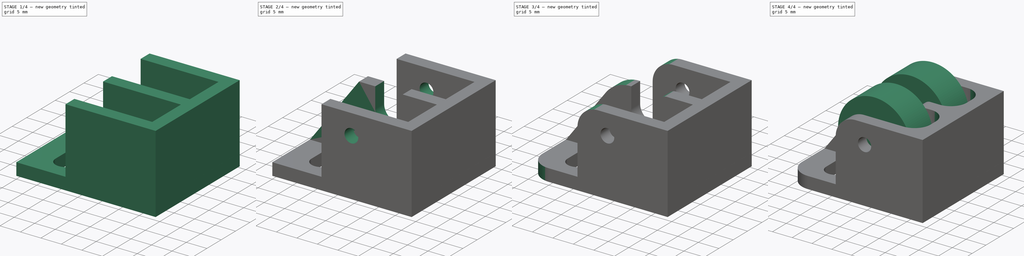
[diagram: build sequence overview — one tinted view per stage of 4, left to right]
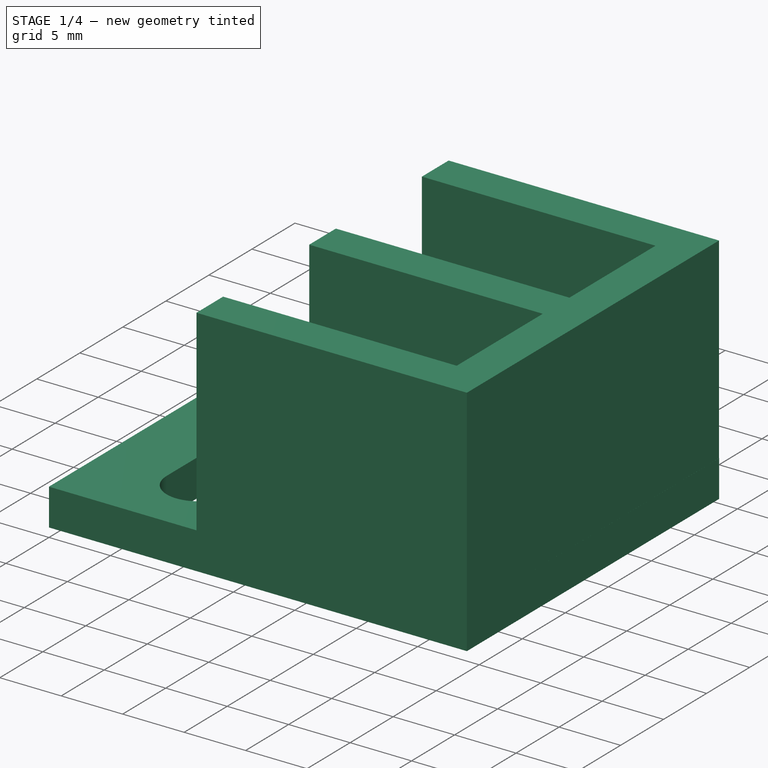
[diagram: stage 1 of 4 — iso view after this stage's code; geometry added in this stage tinted green]
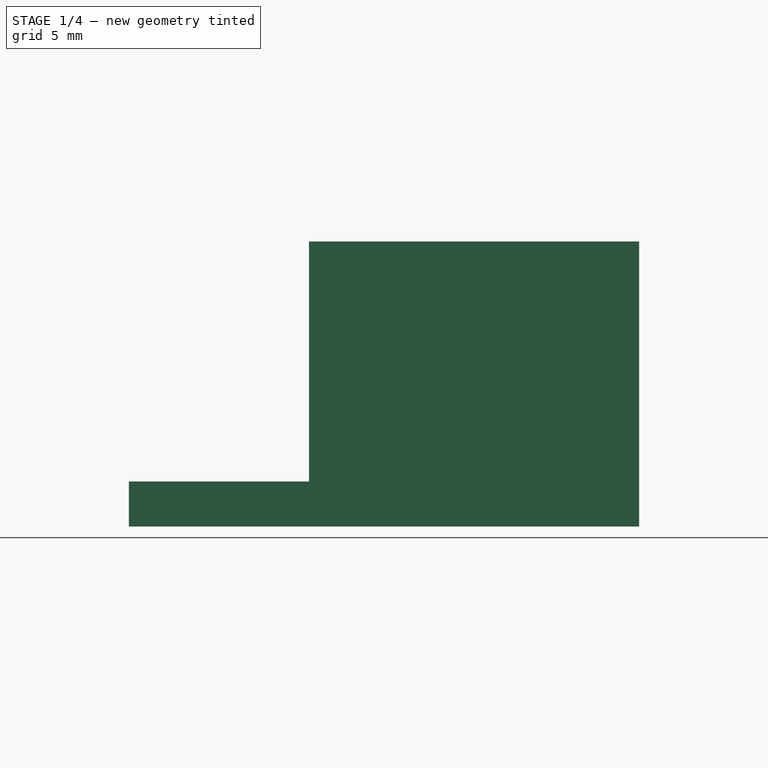
[diagram: stage 1 of 4 — front view after this stage's code; geometry added in this stage tinted green]
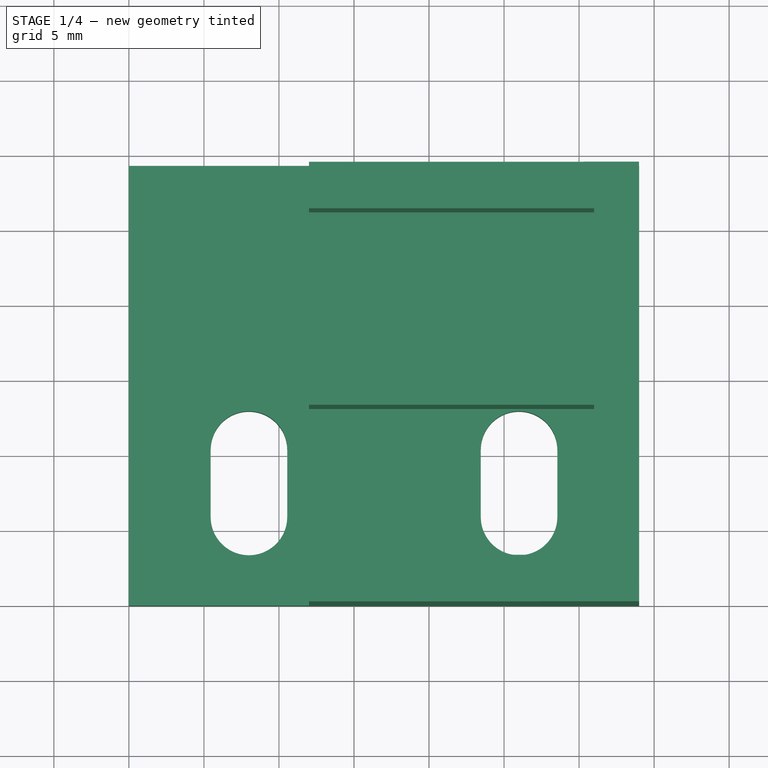
[diagram: stage 1 of 4 — top view after this stage's code; geometry added in this stage tinted green]
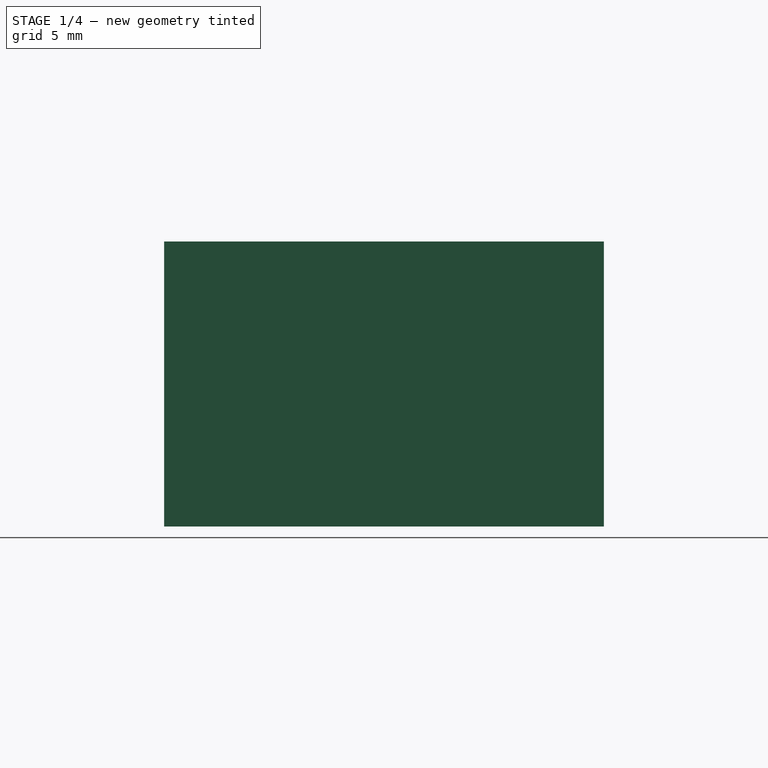
[diagram: stage 1 of 4 — right view after this stage's code; geometry added in this stage tinted green]
FCSTD DOCUMENT  (FreeCAD 0.16R6706 (Git))
Label: belt-junctions
License: All rights reserved
LicenseURL: http://en.wikipedia.org/wiki/All_rights_reserved
objects: PartDesign::Fillet×5, Sketcher::SketchObject×4, PartDesign::Pocket×3, Part::Cylinder×2, Part::Box×1, PartDesign::Pad×1, PartDesign::Draft×1
note: 21 computed .brp shape members not serialized (recipe doc carries the construction recipe); baked Part::Feature solids carry a one-line shape summary decoded from their .brp

FEATURE [Part::Box] Box  label="Cube"
  Height = 3
  Length = 34
  Width = 29.3
FEATURE [Sketcher::SketchObject] Sketch001  label="mnt holes"
  Placement = pos=(0,0,0) rot=(1,0,0;3.14159rad)
  Support = -> Box [Face5]
  sketch-geometry (8):
    g0: ArcOfCircle CenterX=26 CenterY=-5.9 CenterZ=0 NormalX=0 NormalY=0 NormalZ=1 Radius=2.55 StartAngle=0 EndAngle=3.14159
    g1: ArcOfCircle CenterX=26 CenterY=-10.4 CenterZ=0 NormalX=0 NormalY=0 NormalZ=1 Radius=2.55 StartAngle=3.14159 EndAngle=6.28319
    g2: LineSegment StartX=23.45 StartY=-5.9 StartZ=0 EndX=23.45 EndY=-10.4 EndZ=0
    g3: LineSegment StartX=28.55 StartY=-5.9 StartZ=0 EndX=28.55 EndY=-10.4 EndZ=0
    g4: ArcOfCircle CenterX=8 CenterY=-10.4 CenterZ=0 NormalX=0 NormalY=0 NormalZ=1 Radius=2.55 StartAngle=3.14159 EndAngle=6.28319
    g5: LineSegment StartX=10.55 StartY=-5.9 StartZ=0 EndX=10.55 EndY=-10.4 EndZ=0
    g6: LineSegment StartX=5.45 StartY=-5.9 StartZ=0 EndX=5.45 EndY=-10.4 EndZ=0
    g7: ArcOfCircle CenterX=8 CenterY=-5.9 CenterZ=0 NormalX=0 NormalY=0 NormalZ=1 Radius=2.55 StartAngle=0 EndAngle=3.14159
  constraints (20):
    c: Tangent(g0,g3) = 1.5708
    c: Tangent(g0,g2) = -1.5708
    c: Tangent(g2,g1) = -1.5708
    c: Tangent(g3,g1) = 1.5708
    c: Vertical(g2)
    c: Equal(g0,g1)
    c: DistanceY(g-1,g0) = -5.9
    c: Distance(g0,g1) = 4.5
    c: Radius(g1) = 2.55
    c: Tangent(g7,g5) = 1.5708
    c: Tangent(g7,g6) = -1.5708
    c: Tangent(g6,g4) = -1.5708
    c: Tangent(g5,g4) = 1.5708
    c: Vertical(g6)
    c: Equal(g7,g4)
    c: Distance(g7,g4) = 4.5
    c: Equal(g1,g4) = 2.55
    c: DistanceY(g-1,g7) = -5.9
    c: DistanceX(g-2,g7) = 8
    c: Distance(g0,g7) = 18
FEATURE [PartDesign::Pocket] Pocket
  Length = 5
  Sketch = -> Sketch001
  Type = 0
FEATURE [Sketcher::SketchObject] Sketch  label="frame"
  Placement = pos=(0,0,3) rot=(0,0,1;0rad)
  Support = -> Pocket [Face3]
  sketch-geometry (12):
    g0: LineSegment StartX=33.9966 StartY=29.3 StartZ=0 EndX=11.9992 EndY=29.2969 EndZ=0
    g1: LineSegment StartX=11.9992 StartY=29.2969 StartZ=0 EndX=11.9997 EndY=26.1969 EndZ=0
    g2: LineSegment StartX=11.9997 StartY=26.1969 StartZ=0 EndX=30.9997 EndY=26.1996 EndZ=0
    g3: LineSegment StartX=30.9997 StartY=26.1996 StartZ=0 EndX=31.0011 EndY=16.1996 EndZ=0
    g4: LineSegment StartX=31.0011 StartY=16.1996 StartZ=0 EndX=12.0011 EndY=16.1969 EndZ=0
    g5: LineSegment StartX=12.0011 StartY=16.1969 StartZ=0 EndX=12.0015 EndY=13.0969 EndZ=0
    g6: LineSegment StartX=12.0015 StartY=13.0969 StartZ=0 EndX=31.0015 EndY=13.0996 EndZ=0
    g7: LineSegment StartX=31.0015 StartY=13.0996 StartZ=0 EndX=31.0029 EndY=3.09958 EndZ=0
    g8: LineSegment StartX=31.0029 StartY=3.09958 StartZ=0 EndX=12.0029 EndY=3.09692 EndZ=0
    g9: LineSegment StartX=12.0029 StartY=3.09692 StartZ=0 EndX=12.0033 EndY=-0.00307969 EndZ=0
    g10: LineSegment StartX=12.0033 StartY=-0.00307969 StartZ=0 EndX=34.0007 EndY=0 EndZ=0
    g11: LineSegment StartX=34.0007 StartY=0 StartZ=0 EndX=33.9966 EndY=29.3 EndZ=0
  constraints (34):
    c: Coincident(g0,g1)
    c: Coincident(g1,g2)
    c: Coincident(g2,g3)
    c: Coincident(g3,g4)
    c: Coincident(g4,g5)
    c: Coincident(g5,g6)
    c: Coincident(g6,g7)
    c: Coincident(g7,g8)
    c: Coincident(g8,g9)
    c: Coincident(g9,g10)
    c: Coincident(g10,g11)
    c: Coincident(g11,g0)
    c: Parallel(g0,g2)
    c: Parallel(g2,g4)
    c: Parallel(g4,g6)
    c: Parallel(g6,g8)
    c: Parallel(g8,g10)
    c: DistanceY(g-1,g10) = 0
    c: Parallel(g11,g3)
    c: Parallel(g3,g1)
    c: Parallel(g1,g5)
    c: Parallel(g5,g7)
    c: Parallel(g7,g9)
    c: Perpendicular(g0,g11)
    c: Equal(g1,g5)
    c: Equal(g5,g9)
    c: Equal(g0,g10)
    c: Equal(g2,g4)
    c: Equal(g4,g6)
    c: Equal(g6,g8)
    c: Distance(g1) = 3.1
    c: Equal(g3,g7)
    c: Distance(g3) = 10
    c: Distance(g2) = 19
FEATURE [PartDesign::Pad] Pad
  Length = 16
  Length2 = 100
  Sketch = -> Sketch
  Type = 0
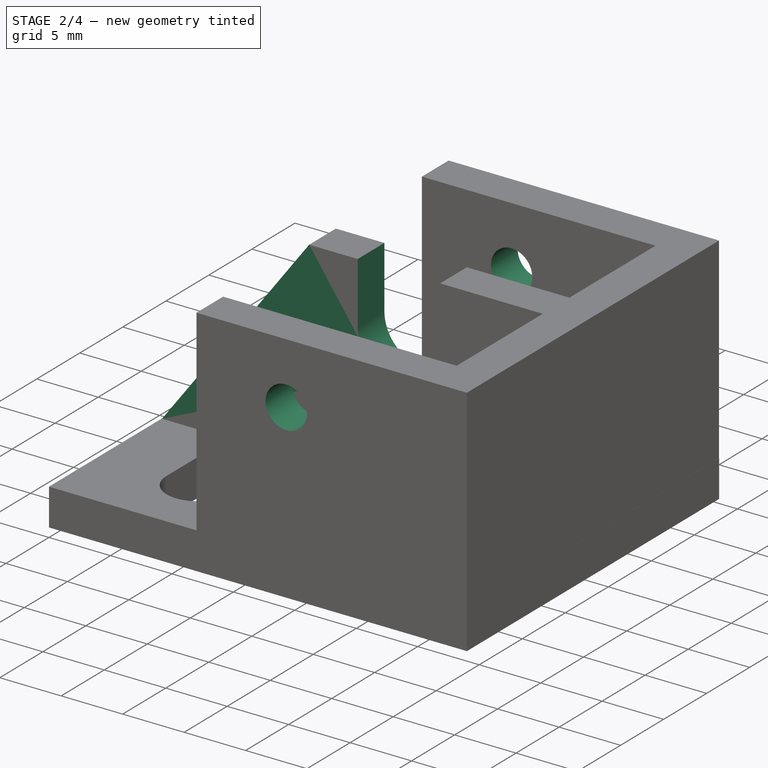
[diagram: stage 2 of 4 — iso view after this stage's code; geometry added in this stage tinted green]
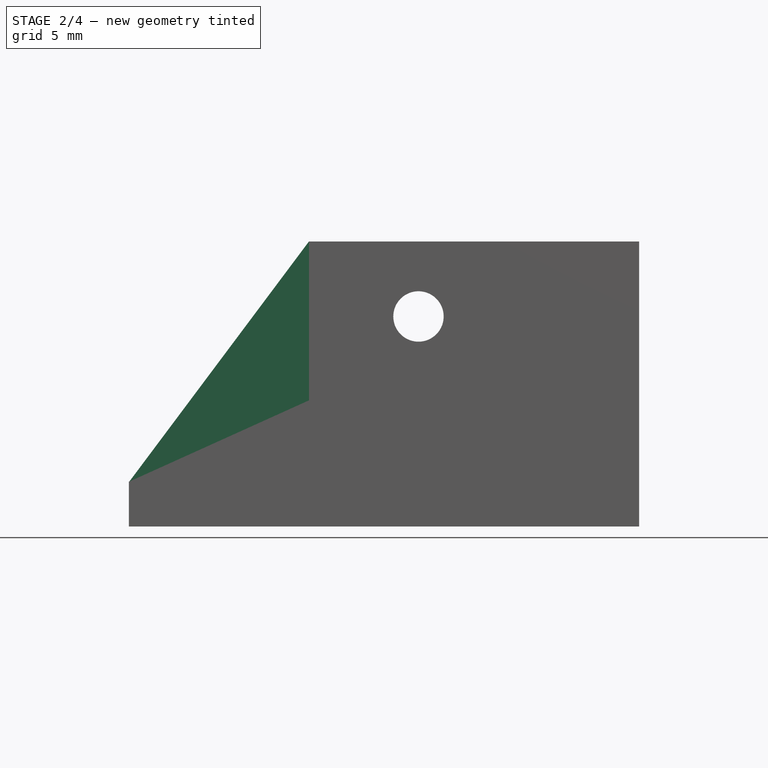
[diagram: stage 2 of 4 — front view after this stage's code; geometry added in this stage tinted green]
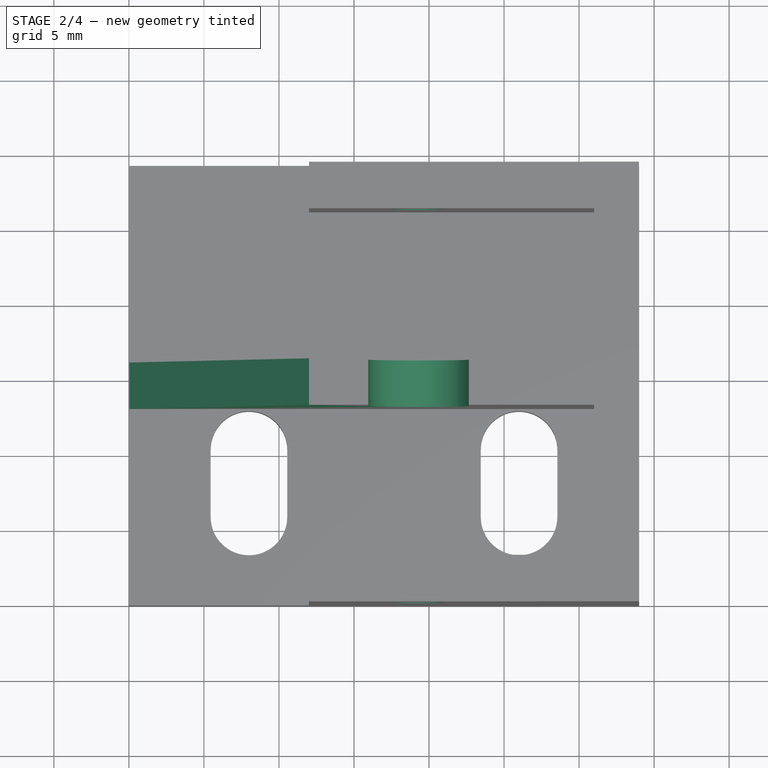
[diagram: stage 2 of 4 — top view after this stage's code; geometry added in this stage tinted green]
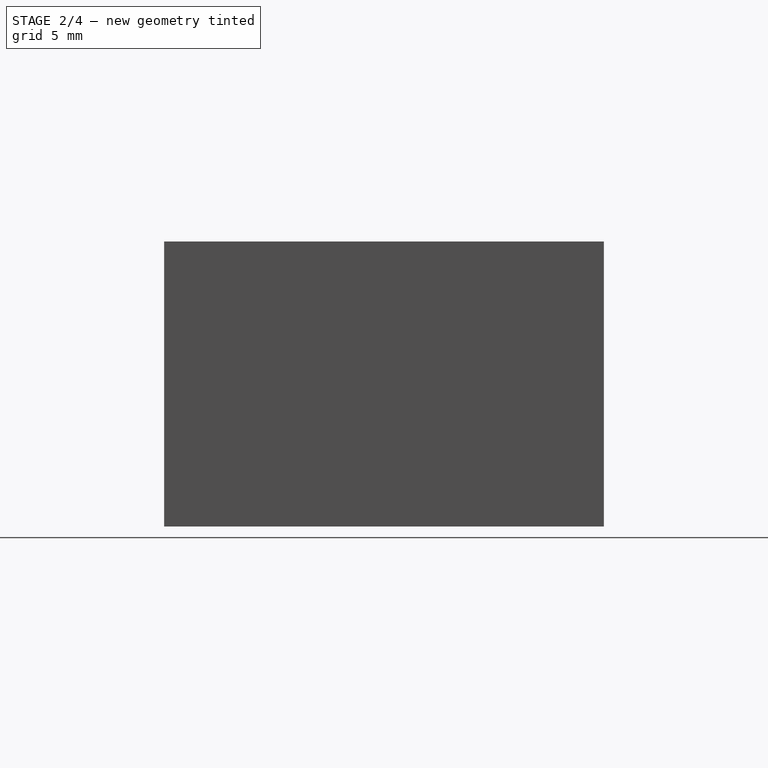
[diagram: stage 2 of 4 — right view after this stage's code; geometry added in this stage tinted green]
FEATURE [Sketcher::SketchObject] Sketch002
  Placement = pos=(6.66441e-07,-0.00476019,0) rot=(1,7e-05,7e-05;1.5708rad)
  Support = -> Pad [Face28]
  sketch-geometry (1):
    g0: Circle CenterX=19.3 CenterY=14 CenterZ=0 NormalX=0 NormalY=0 NormalZ=1 Radius=1.68
  constraints (3):
    c: Radius(g0) = 1.68
    c: DistanceY(g-1,g0) = 14
    c: DistanceX(g-2,g0) = 19.3
FEATURE [PartDesign::Pocket] Pocket001
  Length = 5
  Sketch = -> Sketch002
  Type = 1
FEATURE [Sketcher::SketchObject] Sketch003
  Placement = pos=(-0.00183337,13.0952,0) rot=(1,7e-05,7e-05;1.5708rad)
  Support = -> Pocket001 [Face15]
  sketch-geometry (4):
    g0: ArcOfCircle CenterX=19.3 CenterY=14 CenterZ=0 NormalX=0 NormalY=0 NormalZ=1 Radius=3.35 StartAngle=3.14159 EndAngle=6.28319
    g1: ArcOfCircle CenterX=19.3 CenterY=22.9088 CenterZ=0 NormalX=0 NormalY=0 NormalZ=1 Radius=3.35 StartAngle=0 EndAngle=3.14159
    g2: LineSegment StartX=22.65 StartY=14 StartZ=0 EndX=22.65 EndY=22.9088 EndZ=0
    g3: LineSegment StartX=15.95 StartY=14 StartZ=0 EndX=15.95 EndY=22.9088 EndZ=0
  constraints (9):
    c: Tangent(g0,g3) = 1.5708
    c: Tangent(g0,g2) = -1.5708
    c: Tangent(g2,g1) = -1.5708
    c: Tangent(g3,g1) = 1.5708
    c: Vertical(g2)
    c: Equal(g0,g1)
    c: Distance(g1,g1) = 6.7
    c: DistanceX(g-2,g0) = 19.3
    c: DistanceY(g-1,g0) = 14
FEATURE [PartDesign::Pocket] Pocket002
  Length = 4
  Sketch = -> Sketch003
  Type = 0
FEATURE [PartDesign::Draft] Draft
  Angle = 36.8
  Base = -> Pocket002 [Face14]
  NeutralPlane = -> Pocket002 [Face31]
  Reversed = true
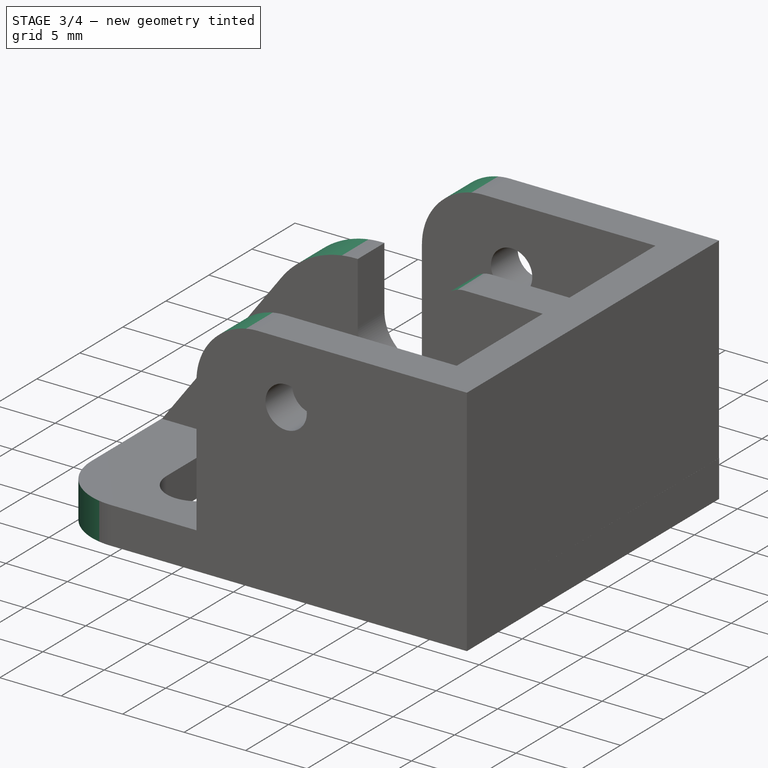
[diagram: stage 3 of 4 — iso view after this stage's code; geometry added in this stage tinted green]
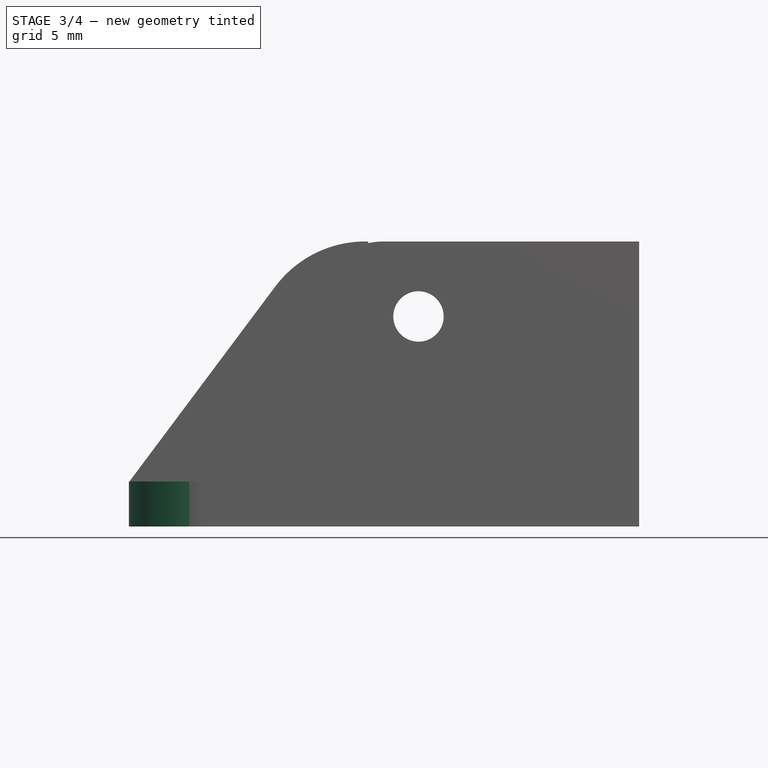
[diagram: stage 3 of 4 — front view after this stage's code; geometry added in this stage tinted green]
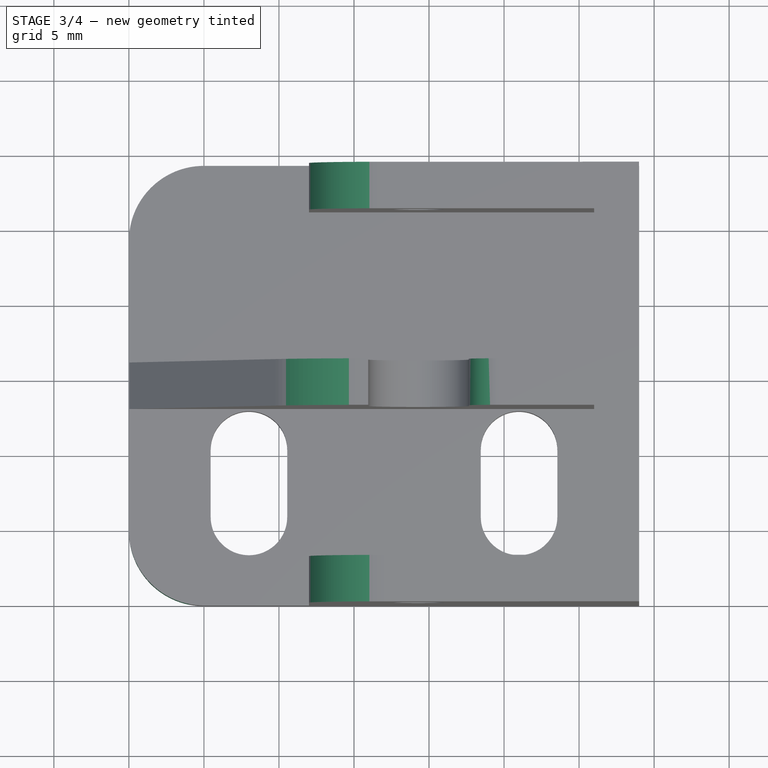
[diagram: stage 3 of 4 — top view after this stage's code; geometry added in this stage tinted green]
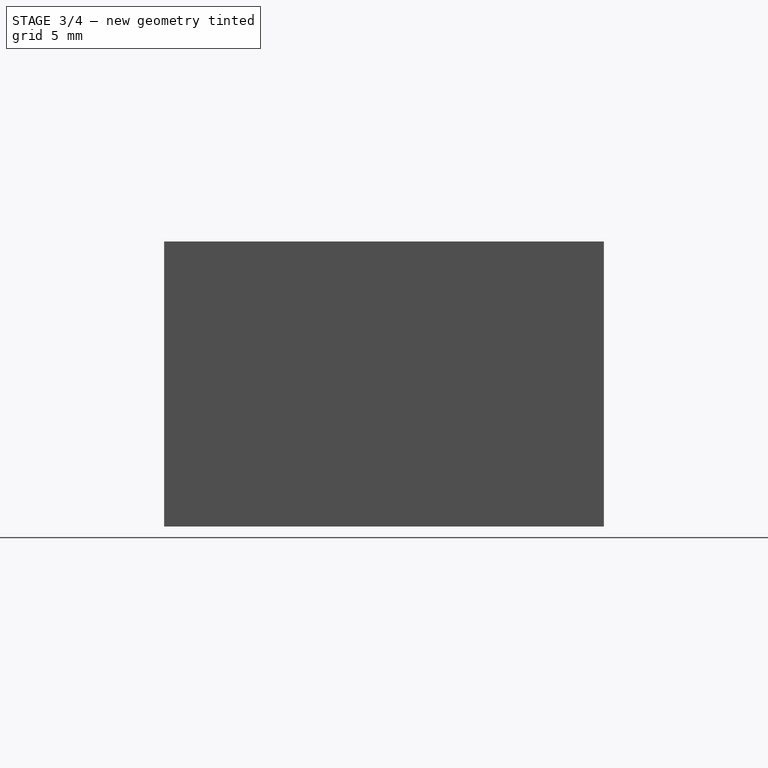
[diagram: stage 3 of 4 — right view after this stage's code; geometry added in this stage tinted green]
FEATURE [PartDesign::Fillet] Fillet
  Base = -> Draft [Edge77,Edge51]
  Radius = 5
FEATURE [PartDesign::Fillet] Fillet001
  Base = -> Fillet [Edge77]
  Radius = 7.5
FEATURE [PartDesign::Fillet] Fillet002
  Base = -> Fillet001 [Edge80,Edge58]
  Radius = 5
FEATURE [PartDesign::Fillet] Fillet003
  Base = -> Fillet002 [Edge104]
  Radius = 2
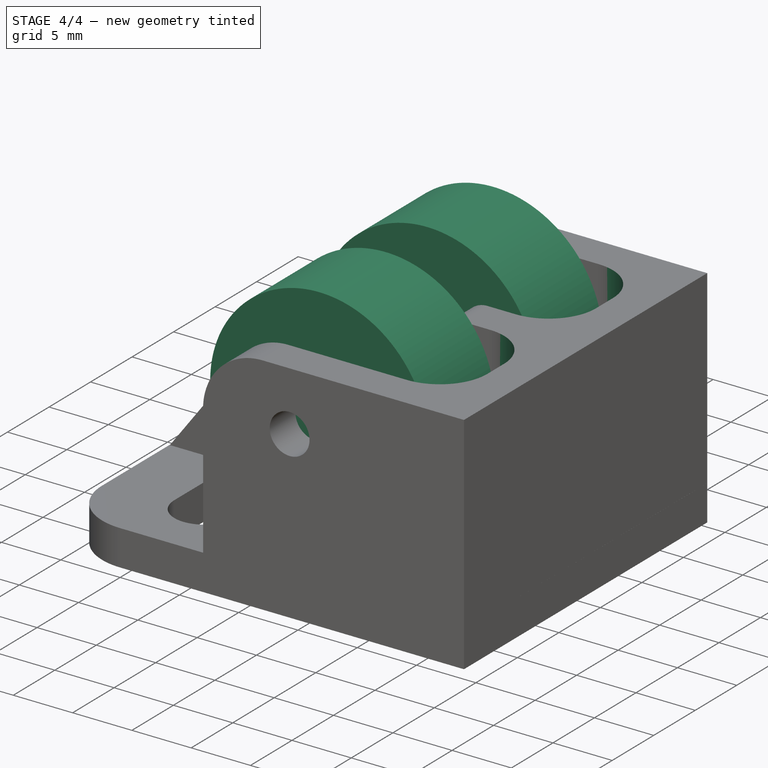
[diagram: stage 4 of 4 — iso view after this stage's code; geometry added in this stage tinted green]
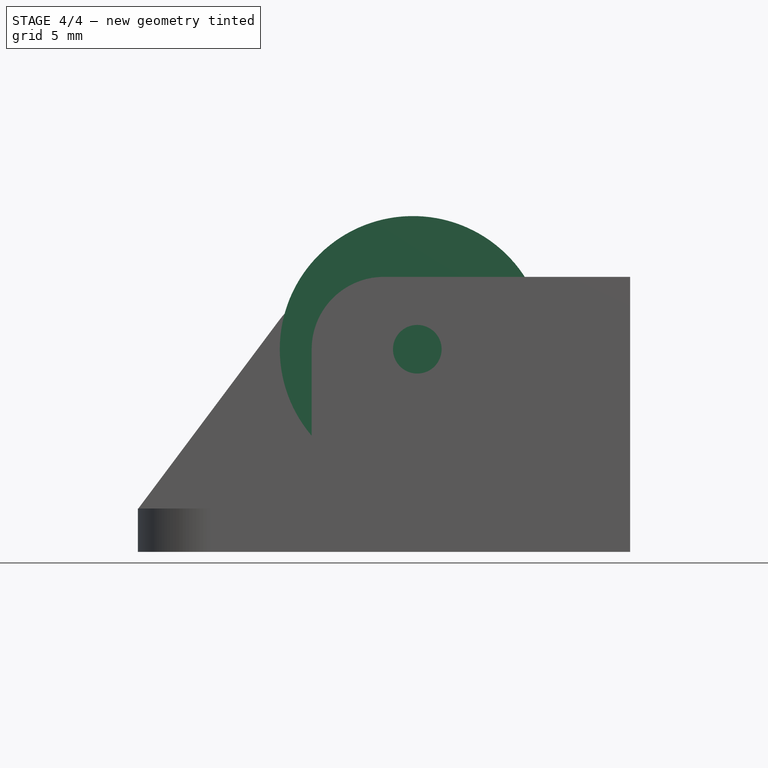
[diagram: stage 4 of 4 — front view after this stage's code; geometry added in this stage tinted green]
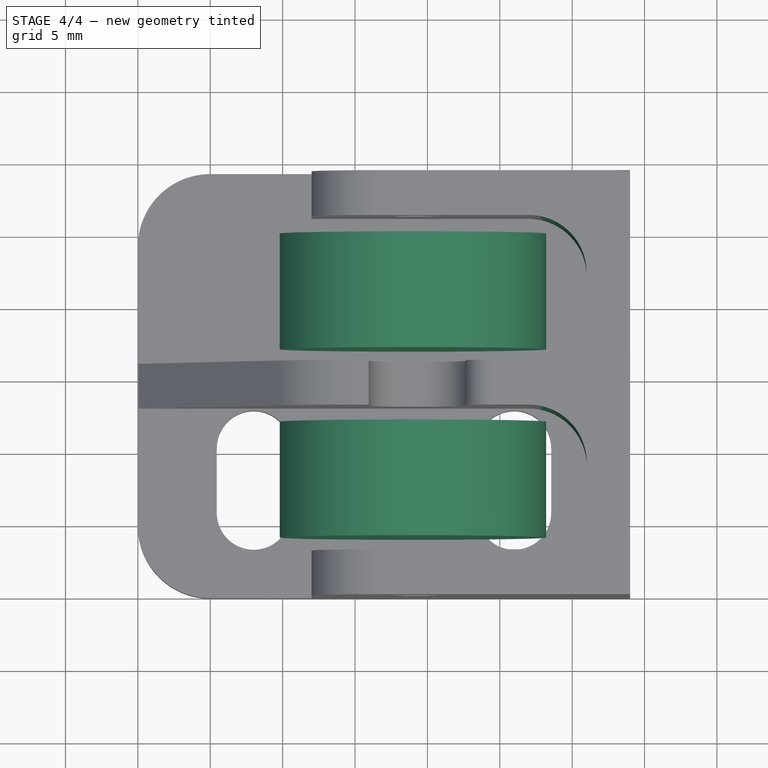
[diagram: stage 4 of 4 — top view after this stage's code; geometry added in this stage tinted green]
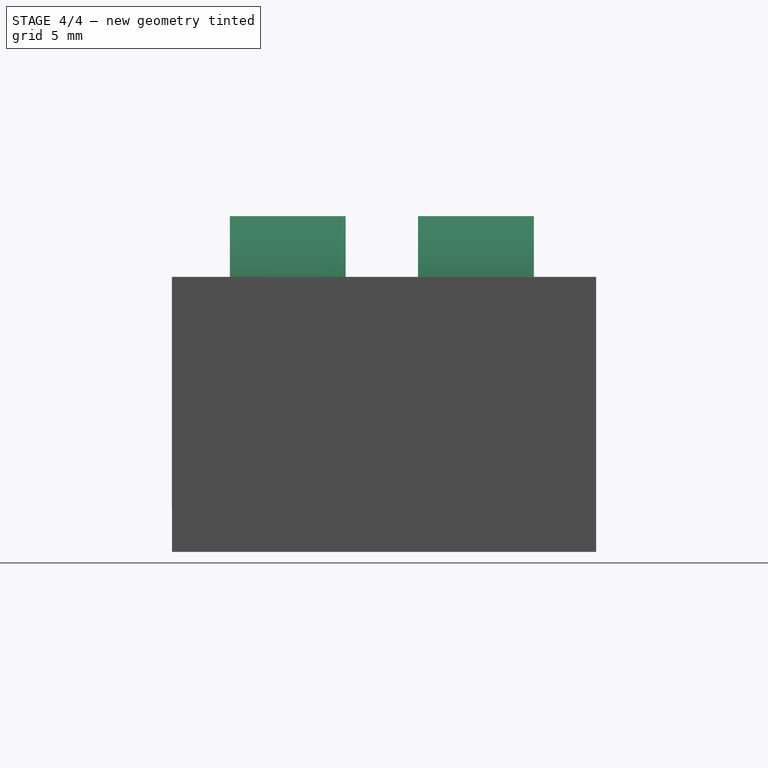
[diagram: stage 4 of 4 — right view after this stage's code; geometry added in this stage tinted green]
FEATURE [Part::Cylinder] Cylinder
  Angle = 360
  Height = 8
  Placement = pos=(19,12,14) rot=(1,0,0;1.5708rad)
  Radius = 9.2
FEATURE [Part::Cylinder] Cylinder001
  Angle = 360
  Height = 8
  Placement = pos=(19,25,14) rot=(1,0,0;1.5708rad)
  Radius = 9.2
FEATURE [PartDesign::Fillet] Fillet004
  Base = -> Fillet003 [Edge24,Edge3,Edge60,Edge64]
  Radius = 4
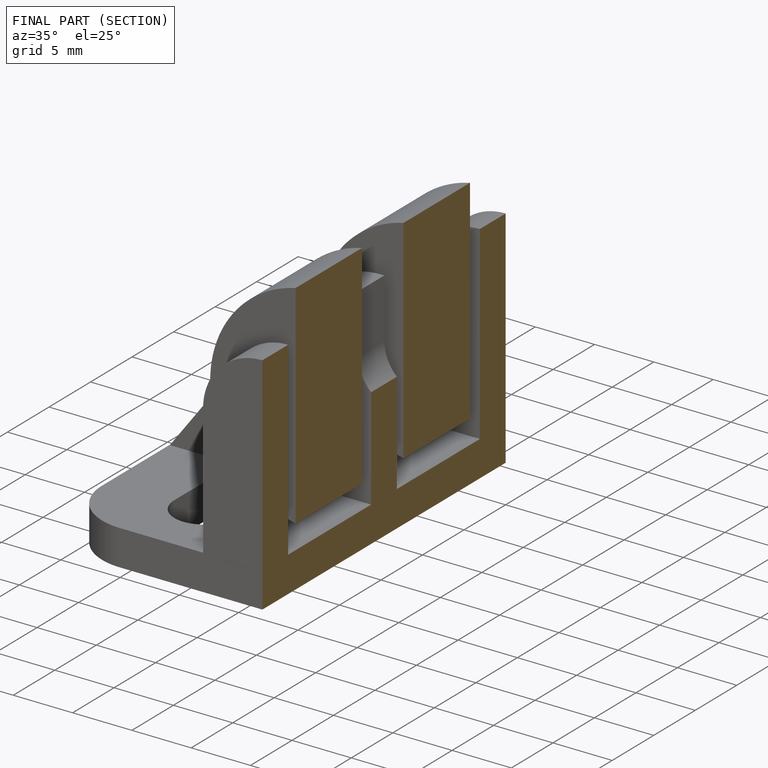
[diagram: finished part — half-section view (interior)]
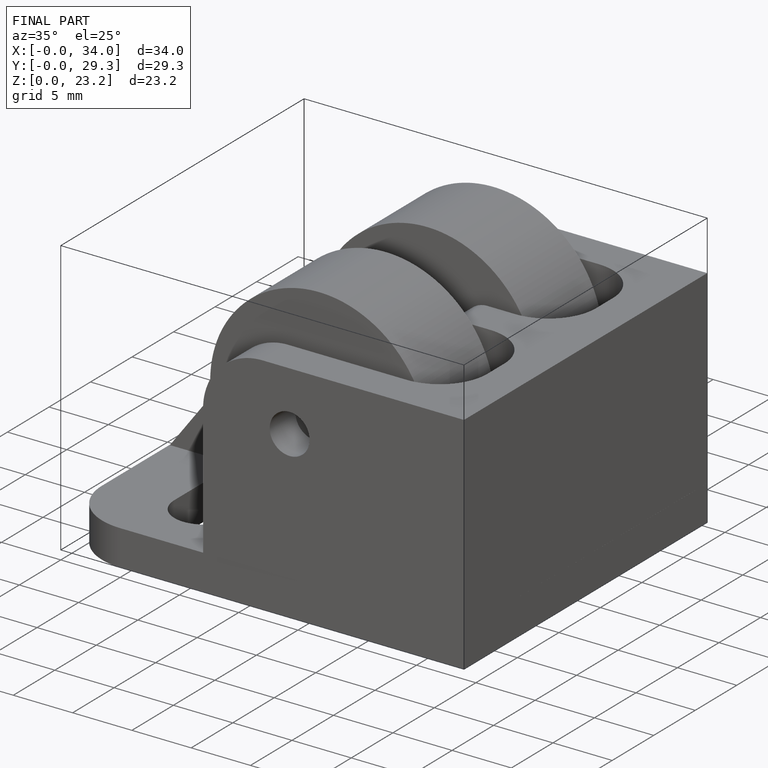
[diagram: finished part — iso view with bounding-box wireframe]
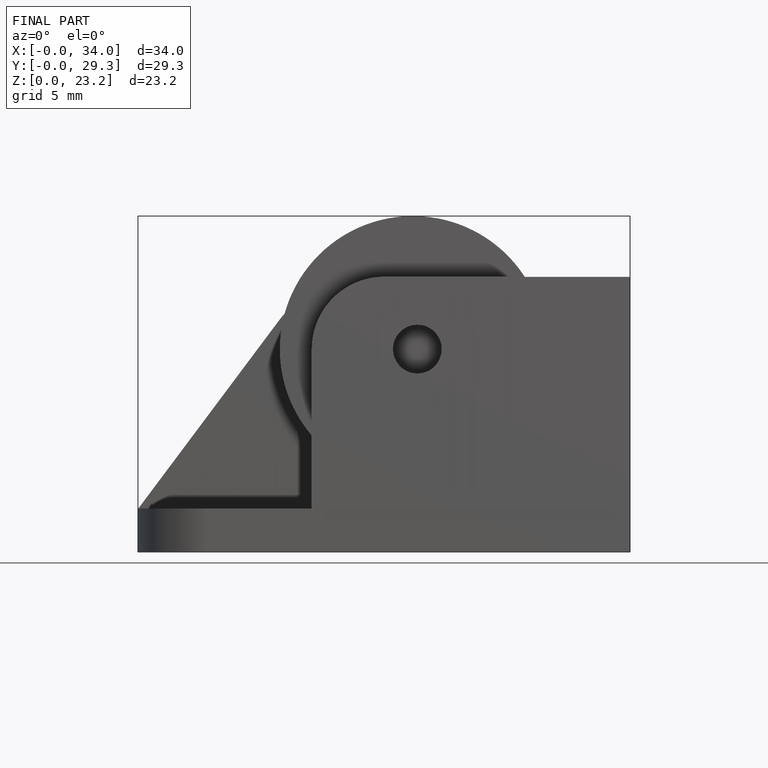
[diagram: finished part — front view with bounding-box wireframe]
